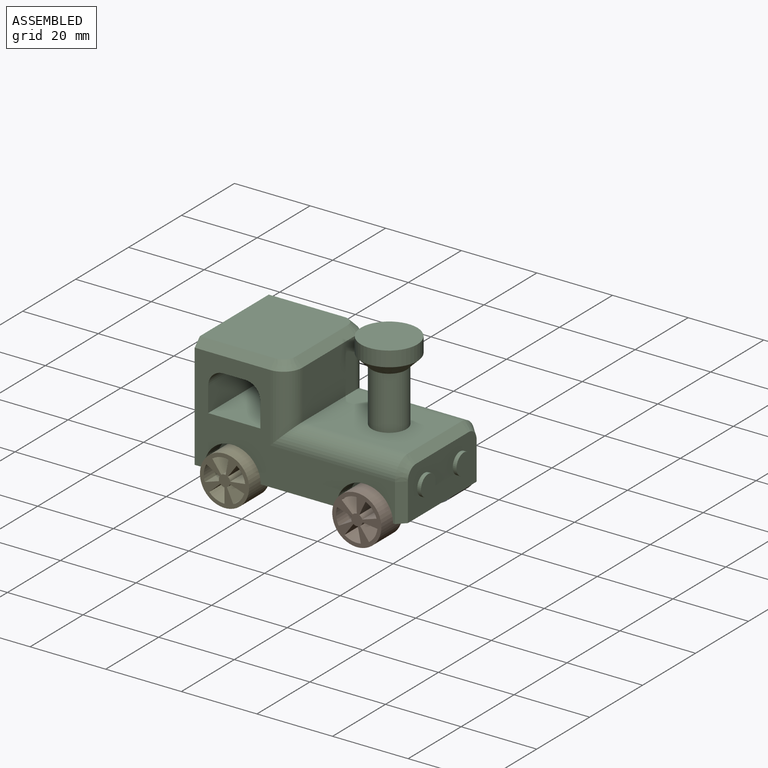
[diagram: assembled view]
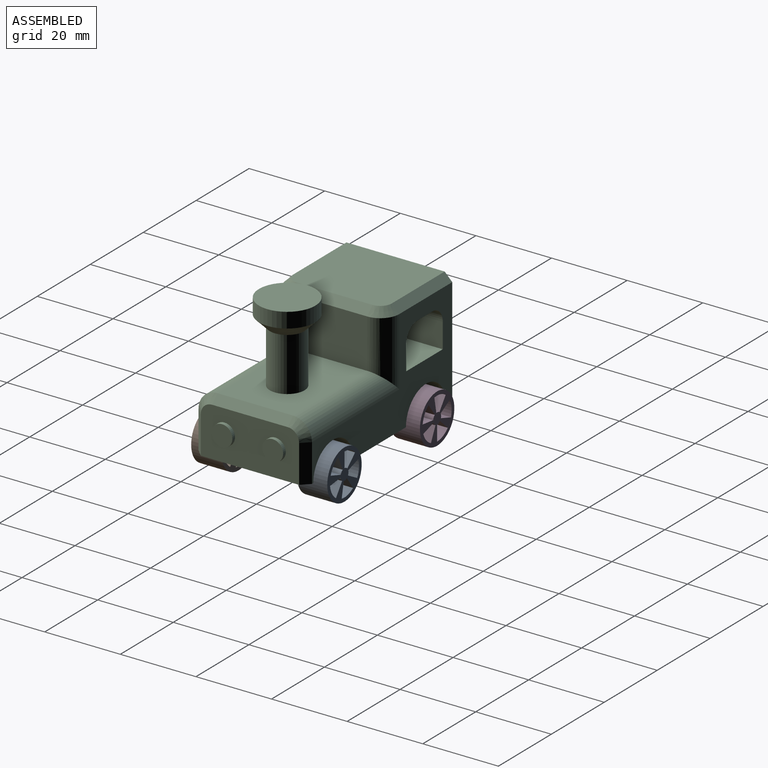
[diagram: assembled view, second angle]
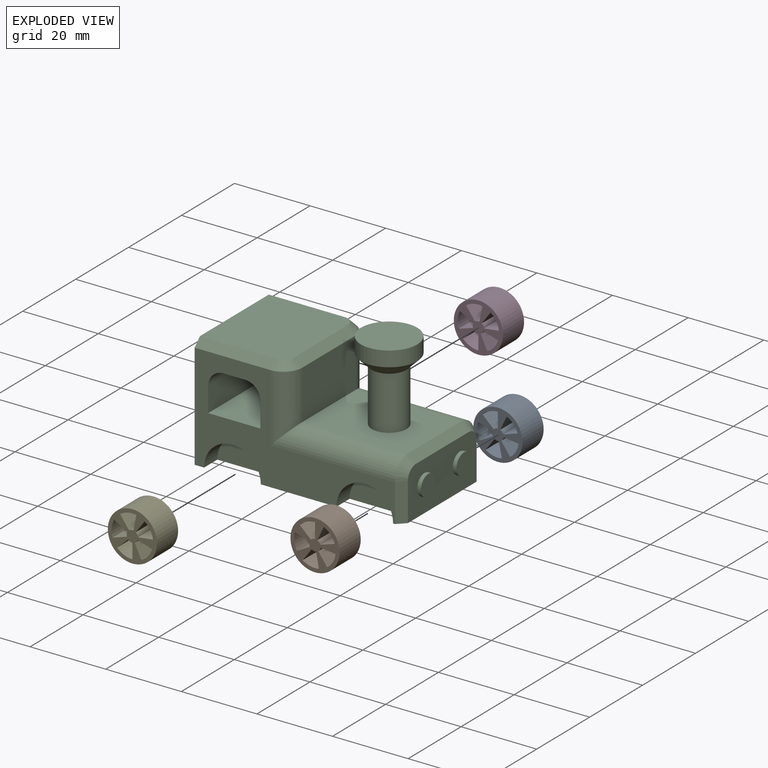
[diagram: exploded view]
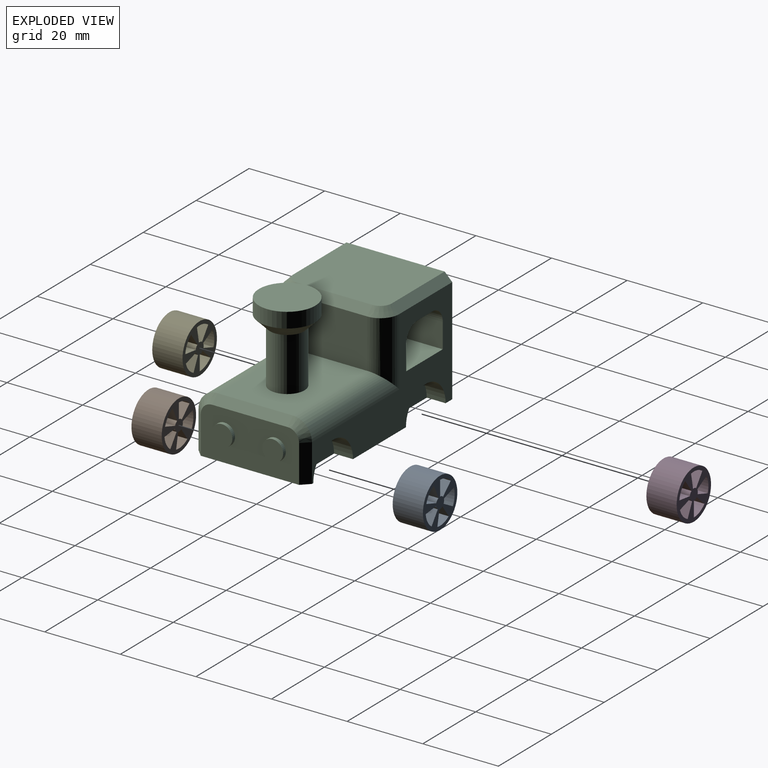
[diagram: exploded view, second angle]
ASSEMBLY  parts=5 mates=4
PART A: 23 faces, bbox 13x13x8 mm
  f0: plane 13x13mm, normal (0,0,1), area 75.3mm2, adj f2,f3,f4,f5,f6,f7,f8,f9
  f1: plane 13x13mm, normal (0,0,-1), area 75.3mm2, adj f2,f3,f4,f5,f6,f7,f8,f9
  f2: cylinder r=6.5mm len=13mm, axis (0,0,-1), area 326.7mm2, adj f0,f1
  f3: plane 8x2.93mm, normal (0.68,0.73,0), area 32mm2, adj f0,f1,f4,f6
  f4: cylinder r=1.5mm len=8mm, axis (0,0,1), area 9.8mm2, adj f0,f1,f3,f5
  f5: plane 8x4mm, normal (-1,0,0), area 32mm2, adj f0,f1,f4,f6
  f6: cylinder r=5.5mm len=8mm, axis (0,0,1), area 36.1mm2, adj f0,f1,f3,f5
  f7: plane 8x3.93mm, normal (-0.98,-0.19,0), area 32mm2, adj f0,f1,f8,f10
  f8: cylinder r=1.5mm len=8mm, axis (0,0,1), area 9.8mm2, adj f0,f1,f7,f9
  f9: plane 8x3.24mm, normal (0.81,-0.59,0), area 32mm2, adj f0,f1,f8,f10
  f10: cylinder r=5.5mm len=8mm, axis (0,0,1), area 36.1mm2, adj f0,f1,f7,f9
  f11: plane 8x3.5mm, normal (-0.48,0.87,0), area 32mm2, adj f0,f1,f12,f14
  f12: cylinder r=1.5mm len=8mm, axis (0,0,1), area 9.8mm2, adj f0,f1,f11,f13
  f13: plane 8x3.8mm, normal (-0.31,-0.95,0), area 32mm2, adj f0,f1,f12,f14
  f14: cylinder r=5.5mm len=8mm, axis (0,0,1), area 36.1mm2, adj f0,f1,f11,f13
  f15: plane 8x3.97mm, normal (-0.12,-0.99,0), area 32mm2, adj f0,f1,f16,f18
  f16: cylinder r=1.5mm len=8mm, axis (0,0,1), area 9.8mm2, adj f0,f1,f15,f17
  f17: plane 8x3.24mm, normal (0.81,0.59,0), area 32mm2, adj f0,f1,f16,f18
  f18: cylinder r=5.5mm len=8mm, axis (0,0,1), area 36.1mm2, adj f0,f1,f15,f17
  f19: plane 8x3.63mm, normal (0.91,-0.42,0), area 32mm2, adj f0,f1,f20,f22
  f20: cylinder r=1.5mm len=8mm, axis (0,0,1), area 9.8mm2, adj f0,f1,f19,f21
  f21: plane 8x3.8mm, normal (-0.31,0.95,0), area 32mm2, adj f0,f1,f20,f22
  f22: cylinder r=5.5mm len=8mm, axis (0,0,1), area 36.1mm2, adj f0,f1,f19,f21
PART B: same geometry as A
PART C: 44 faces, bbox 56x30x36 mm
  f0: plane 53x28mm, normal (0,1,0), area 574.5mm2, adj f3,f5,f8,f10,f16,f17,f18,f19
  f1: plane 26x23mm, normal (0,0,1), area 594.1mm2, adj f3,f31,f32,f33,f34,f35
  f2: plane 26x13mm, normal (1,0,0), area 286.3mm2, adj f5,f26,f27,f28,f29,f30,f40,f42
  f3: plane 30x30mm, normal (-1,0,0), area 896mm2, adj f0,f1,f4,f5,f31,f35
  f4: plane 53x28mm, normal (0,-1,0), area 574.5mm2, adj f3,f5,f12,f14,f16,f17,f18,f19
  f5: plane 55x30mm, normal (0,0,-1), area 1346mm2, adj f0,f2,f3,f4,f8,f9,f10,f11
  f6: plane 28x20mm, normal (0,0,1), area 493.6mm2, adj f7,f23,f24,f28,f36
  f7: plane 20x13mm, normal (1,0,0), area 260mm2, adj f6,f22,f25,f33
  f8: cylinder r=7.5mm len=15mm, axis (0,1,0), area 117.8mm2, adj f0,f5,f9
  f9: plane 15x7.5mm, normal (0,1,0), area 88.4mm2, adj f5,f8
  f10: cylinder r=7.5mm len=15mm, axis (0,1,0), area 117.8mm2, adj f0,f5,f11
  f11: plane 15x7.5mm, normal (0,1,0), area 88.4mm2, adj f5,f10
  f12: cylinder r=7.5mm len=15mm, axis (0,-1,0), area 117.8mm2, adj f4,f5,f13
  f13: plane 15x7.5mm, normal (0,-1,0), area 88.4mm2, adj f5,f12
  f14: cylinder r=7.5mm len=15mm, axis (0,-1,0), area 117.8mm2, adj f4,f5,f15
  f15: plane 15x7.5mm, normal (0,-1,0), area 88.4mm2, adj f5,f14
  f16: plane 30x6.55mm, normal (-1,0,0), area 196.5mm2, adj f0,f4,f17,f21
  f17: plane 30x13.81mm, normal (0,0,1), area 414.1mm2, adj f0,f4,f16,f18
  f18: plane 30x6.55mm, normal (1,0,0), area 196.5mm2, adj f0,f4,f17,f19
  f19: cylinder r=4mm len=30mm, axis (0,1,0), area 188.5mm2, adj f0,f4,f18,f20
  f20: plane 30x5.81mm, normal (0,0,-1), area 174.1mm2, adj f0,f4,f19,f21
  f21: cylinder r=4mm len=30mm, axis (0,1,0), area 188.5mm2, adj f0,f4,f16,f20
  f22: cylinder r=5mm len=18mm, axis (0,0,1), area 116.4mm2, adj f4,f7,f23,f34
  f23: cylinder r=5mm len=33mm, axis (-1,0,0), area 234.2mm2, adj f4,f6,f22,f29
  f24: cylinder r=5mm len=33mm, axis (-1,0,0), area 234.2mm2, adj f0,f6,f25,f27
  f25: cylinder r=5mm len=18mm, axis (0,0,1), area 116.4mm2, adj f0,f7,f24,f32
  f26: plane 10x2mm, normal (0.71,0.71,0), area 28.3mm2, adj f0,f2,f5,f27
  f27: cone r=3mm half-angle=45deg, axis (-1,0,0), area 17.8mm2, adj f2,f24,f26,f28
  f28: plane 20x2mm, normal (0.71,0,0.71), area 56.6mm2, adj f2,f6,f27,f29
  f29: cone r=3mm half-angle=45deg, axis (-1,0,0), area 17.8mm2, adj f2,f23,f28,f30
  f30: plane 10x2mm, normal (0.71,-0.71,0), area 28.3mm2, adj f2,f4,f5,f29
  f31: plane 20x2mm, normal (0,0.71,0.71), area 56.6mm2, adj f0,f1,f3,f32
  f32: cone r=3mm half-angle=45deg, axis (0,0,-1), area 17.8mm2, adj f1,f25,f31,f33
  f33: plane 20x2mm, normal (0.71,0,0.71), area 56.6mm2, adj f1,f7,f32,f34
  f34: cone r=3mm half-angle=45deg, axis (0,0,-1), area 17.8mm2, adj f1,f22,f33,f35
  f35: plane 20x2mm, normal (0,-0.71,0.71), area 56.6mm2, adj f1,f3,f4,f34
  f36: cylinder r=4.6mm len=14.13mm, axis (0,0,-1), area 408.3mm2, adj f6,f39
  f37: cylinder r=7.47mm len=14.93mm, axis (0,0,-1), area 187.7mm2, adj f38,f39
  f38: plane 14.93x14.93mm, normal (0,0,1), area 175.2mm2, adj f37
  f39: cone r=7.47mm half-angle=45deg, axis (0,0,1), area 153.7mm2, adj f36,f37
  f40: cylinder r=2.76mm len=5.52mm, axis (-1,0,0), area 17.3mm2, adj f2,f41
  f41: plane 5.52x5.52mm, normal (1,0,0), area 23.9mm2, adj f40
  f42: cylinder r=2.76mm len=5.52mm, axis (-1,0,0), area 17.3mm2, adj f2,f43
  f43: plane 5.52x5.52mm, normal (1,0,0), area 23.9mm2, adj f42
PART D: same geometry as A
PART E: same geometry as A
PLACE A rot(axis=(1,0,0),90deg) t=(130.14,16.38,53.78)mm
PLACE B rot(axis=(1,0,0),90deg) t=(130.14,-11.62,53.78)mm
PLACE C t=(112.64,-1.62,53.78)mm
PLACE D rot(axis=(-1,0,0),90deg) t=(95.14,8.38,53.78)mm
PLACE E rot(axis=(-1,0,0),90deg) t=(95.14,-19.62,53.78)mm
MATE fastened C.f10 <-> B.f2  axis (0,-1,0) through (130.14,-11.62,53.78)mm
MATE fastened C.f10 <-> A.f4  axis (0,1,0) through (130.14,8.38,53.78)mm
MATE fastened C.f8 <-> D.f4  axis (0,1,0) through (95.14,8.38,53.78)mm
MATE fastened C.f8 <-> E.f4  axis (0,-1,0) through (95.14,-11.62,53.78)mm
